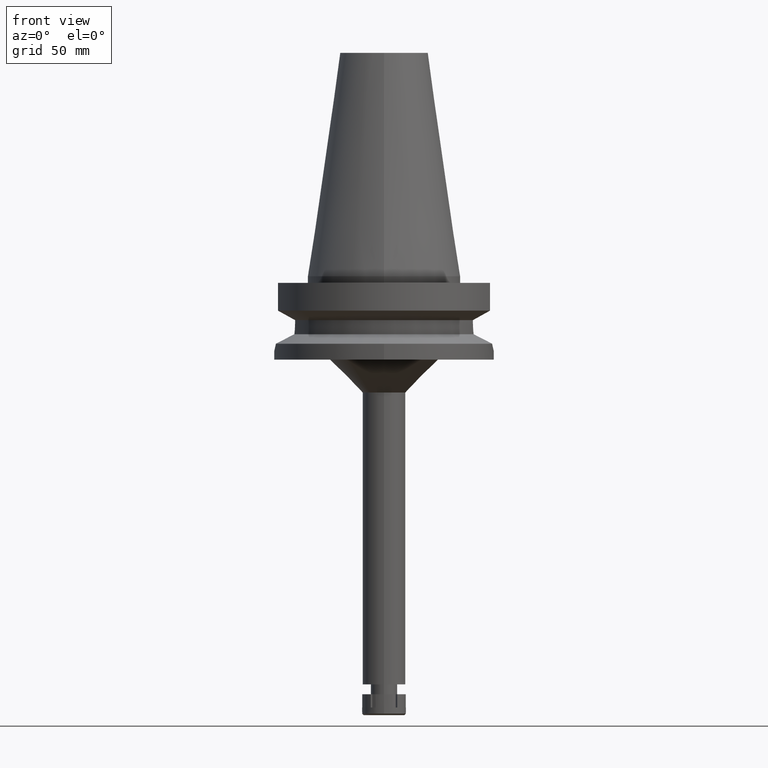
[diagram: clean part render]
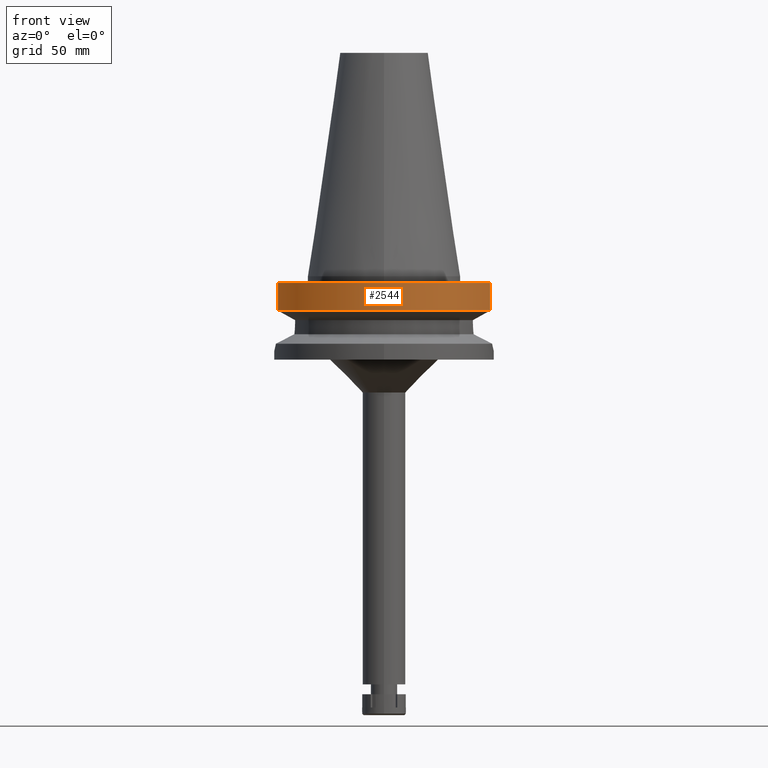
[diagram: same view with one face highlighted and labeled with its STEP entity id]
A machine part, front view. The second image highlights one B-rep face of the part: STEP entity #2544.
In plain terms, the highlighted cylindrical surface (partial cylindrical patch) has radius 50 mm, axis along (0, 0, -1).
Its self-contained STEP definition (entity closure, byte-faithful):
#98 = AXIS2_PLACEMENT_3D ( 'NONE', #1036, #1922, #1055 ) ;
#174 = CARTESIAN_POINT ( 'NONE',  ( 0.0000000000000000000, 2.653074825673000053E-14, 116.6400000000000006 ) ) ;
#215 = CYLINDRICAL_SURFACE ( 'NONE', #2781, 50.00000000000000000 ) ;
#294 = CARTESIAN_POINT ( 'NONE',  ( -48.32057015392000210, -12.84999999999999964, -3.000000000000000000 ) ) ;
#519 = CARTESIAN_POINT ( 'NONE',  ( 48.32057015392000210, -12.84999999999999964, -15.66269223573000069 ) ) ;
#589 = VERTEX_POINT ( 'NONE', #1322 ) ;
#818 = VERTEX_POINT ( 'NONE', #294 ) ;
#869 = VECTOR ( 'NONE', #3167, 999.9999999999998863 ) ;
#904 = LINE ( 'NONE', #2041, #869 ) ;
#1036 = CARTESIAN_POINT ( 'NONE',  ( 0.0000000000000000000, 2.653074825673000053E-14, -3.000000000000000000 ) ) ;
#1055 = DIRECTION ( 'NONE',  ( 0.0000000000000000000, -1.000000000000000000, 0.0000000000000000000 ) ) ;
#1090 = DIRECTION ( 'NONE',  ( 0.0000000000000000000, 0.0000000000000000000, 1.000000000000000000 ) ) ;
#1125 = DIRECTION ( 'NONE',  ( 0.0000000000000000000, -1.000000000000000000, 0.0000000000000000000 ) ) ;
#1214 = ORIENTED_EDGE ( 'NONE', *, *, #2409, .F. ) ;
#1322 = CARTESIAN_POINT ( 'NONE',  ( -48.32056912814000071, -12.85000385727999905, -15.66265768250999990 ) ) ;
#1462 = CARTESIAN_POINT ( 'NONE',  ( -48.32056912814000071, -12.85000385727999905, -15.66265768250999990 ) ) ;
#1572 = VERTEX_POINT ( 'NONE', #2459 ) ;
#1922 = DIRECTION ( 'NONE',  ( 0.0000000000000000000, 0.0000000000000000000, -1.000000000000000000 ) ) ;
#1958 = CIRCLE ( 'NONE', #98, 50.00000000000000000 ) ;
#2041 = CARTESIAN_POINT ( 'NONE',  ( 48.32057015392000210, -12.84999999999999964, -3.000000000000000000 ) ) ;
#2151 = DIRECTION ( 'NONE',  ( 0.0000000000000000000, -1.000000000000000000, 0.0000000000000000000 ) ) ;
#2165 = DIRECTION ( 'NONE',  ( 0.0000000000000000000, 0.0000000000000000000, -1.000000000000000000 ) ) ;
#2182 = VECTOR ( 'NONE', #2920, 1000.000000000000114 ) ;
#2187 = VERTEX_POINT ( 'NONE', #519 ) ;
#2308 = AXIS2_PLACEMENT_3D ( 'NONE', #2521, #1090, #1125 ) ;
#2346 = ORIENTED_EDGE ( 'NONE', *, *, #2438, .F. ) ;
#2409 = EDGE_CURVE ( 'NONE', #589, #818, #2950, .T. ) ;
#2438 = EDGE_CURVE ( 'NONE', #1572, #2187, #904, .T. ) ;
#2459 = CARTESIAN_POINT ( 'NONE',  ( 48.32057015392000210, -12.84999999999999964, -3.000000000000000000 ) ) ;
#2501 = FACE_OUTER_BOUND ( 'NONE', #3280, .T. ) ;
#2521 = CARTESIAN_POINT ( 'NONE',  ( 0.0000000000000000000, 1.006319759053999930E-14, -15.66269223573000069 ) ) ;
#2544 = ADVANCED_FACE ( 'NONE', ( #2501 ), #215, .T. ) ;
#2781 = AXIS2_PLACEMENT_3D ( 'NONE', #174, #2165, #2151 ) ;
#2920 = DIRECTION ( 'NONE',  ( -8.100800697240604101E-08, 3.046187202870850882E-07, 0.9999999999999503730 ) ) ;
#2950 = LINE ( 'NONE', #1462, #2182 ) ;
#3083 = CIRCLE ( 'NONE', #2308, 50.00000000000000000 ) ;
#3129 = ORIENTED_EDGE ( 'NONE', *, *, #3683, .T. ) ;
#3167 = DIRECTION ( 'NONE',  ( -8.103495655121601761E-08, -3.047200592494850252E-07, -0.9999999999999503730 ) ) ;
#3280 = EDGE_LOOP ( 'NONE', ( #1214, #3129, #2346, #3300 ) ) ;
#3300 = ORIENTED_EDGE ( 'NONE', *, *, #3462, .T. ) ;
#3462 = EDGE_CURVE ( 'NONE', #1572, #818, #1958, .T. ) ;
#3683 = EDGE_CURVE ( 'NONE', #589, #2187, #3083, .T. ) ;